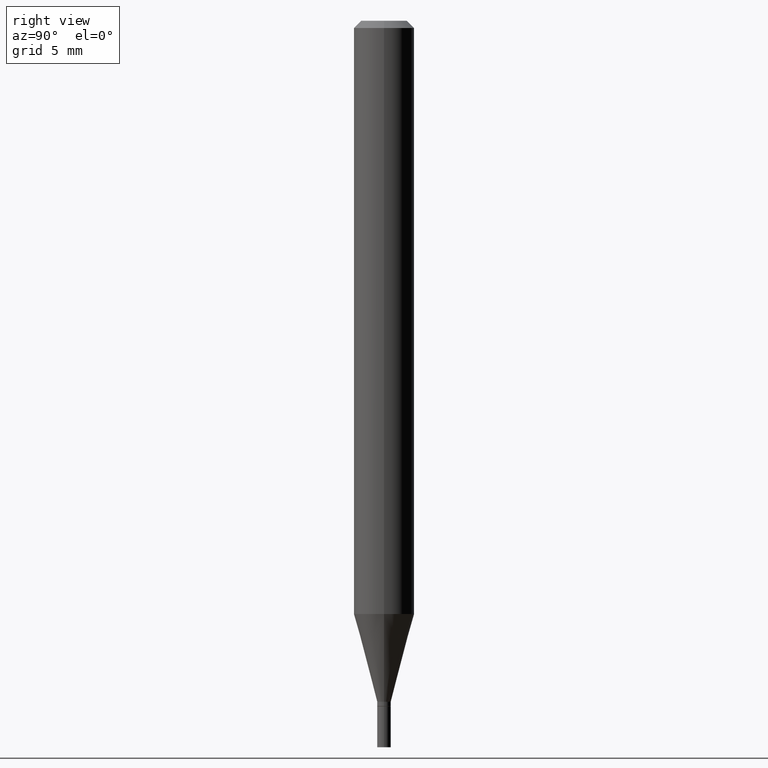
[diagram: clean part render]
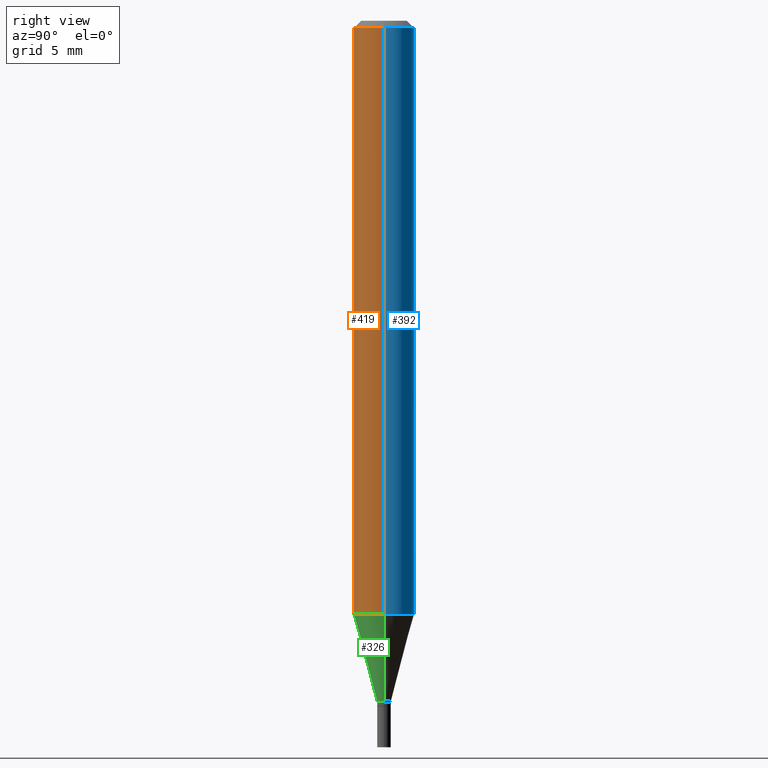
[diagram: same view with three faces highlighted in distinct colors, each labeled with its STEP entity id]
A machine part, right view with three faces highlighted in distinct colors.
Their STEP definitions:

[orange] entity #419 — the highlighted cylindrical surface (edge-blend (fillet) strip) has radius 1.5875 mm, axis along (-0, 0, 1).
#12 = ORIENTED_EDGE ( 'NONE', *, *, #447, .F. ) ;
#28 = DIRECTION ( 'NONE',  ( 1.000000000000000000, -6.982962677686266711E-15, 0.000000000000000000 ) ) ;
#38 = ORIENTED_EDGE ( 'NONE', *, *, #50, .F. ) ;
#42 = DIRECTION ( 'NONE',  ( -2.445468806185136597E-29, 3.491481338843145583E-15, 1.000000000000000000 ) ) ;
#46 = AXIS2_PLACEMENT_3D ( 'NONE', #232, #190, #123 ) ;
#50 = EDGE_CURVE ( 'NONE', #376, #214, #358, .T. ) ;
#69 = CARTESIAN_POINT ( 'NONE',  ( -0.06250000000000000000, -1.720621426954643378E-15, -0.01499999999999999944 ) ) ;
#84 = EDGE_CURVE ( 'NONE', #322, #299, #338, .T. ) ;
#87 = EDGE_CURVE ( 'NONE', #299, #214, #94, .T. ) ;
#94 = LINE ( 'NONE', #159, #125 ) ;
#123 = DIRECTION ( 'NONE',  ( 1.000000000000000000, -6.982962677686270655E-15, 0.000000000000000000 ) ) ;
#125 = VECTOR ( 'NONE', #393, 39.37007874015748143 ) ;
#147 = ORIENTED_EDGE ( 'NONE', *, *, #87, .T. ) ;
#159 = CARTESIAN_POINT ( 'NONE',  ( 0.06250000000000000000, -4.364351673553916694E-16, 3.047610484872459871E-30 ) ) ;
#171 = CARTESIAN_POINT ( 'NONE',  ( -0.06250000000000000000, -3.832959843676702294E-15, -1.224995535832909876 ) ) ;
#190 = DIRECTION ( 'NONE',  ( -2.445468806185136597E-29, 3.491481338843145583E-15, 1.000000000000000000 ) ) ;
#214 = VERTEX_POINT ( 'NONE', #284 ) ;
#225 = DIRECTION ( 'NONE',  ( -2.445468806185136877E-29, 3.491481338843145188E-15, 1.000000000000000000 ) ) ;
#232 = CARTESIAN_POINT ( 'NONE',  ( 2.995688370595427801E-29, -4.277049053526764910E-15, -1.224995535832909876 ) ) ;
#264 = CARTESIAN_POINT ( 'NONE',  ( 0.000000000000000000, 0.000000000000000000, 0.000000000000000000 ) ) ;
#284 = CARTESIAN_POINT ( 'NONE',  ( 0.06250000000000000000, -4.888073874380388472E-16, -0.01499999999999999944 ) ) ;
#294 = EDGE_LOOP ( 'NONE', ( #12, #311, #147, #38 ) ) ;
#295 = CARTESIAN_POINT ( 'NONE',  ( -0.06250000000000000000, 4.440892098500626162E-16, -3.074334431409316114E-30 ) ) ;
#299 = VERTEX_POINT ( 'NONE', #435 ) ;
#311 = ORIENTED_EDGE ( 'NONE', *, *, #84, .T. ) ;
#322 = VERTEX_POINT ( 'NONE', #171 ) ;
#338 = CIRCLE ( 'NONE', #46, 0.06250000000000000000 ) ;
#339 = AXIS2_PLACEMENT_3D ( 'NONE', #264, #372, #424 ) ;
#342 = CYLINDRICAL_SURFACE ( 'NONE', #339, 0.06250000000000000000 ) ;
#358 = CIRCLE ( 'NONE', #414, 0.06250000000000000000 ) ;
#364 = CARTESIAN_POINT ( 'NONE',  ( 3.668203209277705088E-31, -5.237222008264718399E-17, -0.01499999999999999944 ) ) ;
#372 = DIRECTION ( 'NONE',  ( -2.445468806185136597E-29, 3.491481338843145583E-15, 1.000000000000000000 ) ) ;
#376 = VERTEX_POINT ( 'NONE', #69 ) ;
#393 = DIRECTION ( 'NONE',  ( -2.445468806185136877E-29, 3.491481338843145188E-15, 1.000000000000000000 ) ) ;
#412 = LINE ( 'NONE', #295, #431 ) ;
#414 = AXIS2_PLACEMENT_3D ( 'NONE', #364, #42, #28 ) ;
#418 = FACE_OUTER_BOUND ( 'NONE', #294, .T. ) ;
#419 = ADVANCED_FACE ( 'NONE', ( #418 ), #342, .T. ) ;
#424 = DIRECTION ( 'NONE',  ( 1.000000000000000000, -6.982962677686266711E-15, 4.876176775795935793E-29 ) ) ;
#431 = VECTOR ( 'NONE', #225, 39.37007874015748143 ) ;
#435 = CARTESIAN_POINT ( 'NONE',  ( 0.06250000000000000000, -4.713484220882155791E-15, -1.224995535832909876 ) ) ;
#447 = EDGE_CURVE ( 'NONE', #322, #376, #412, .T. ) ;

[blue] entity #392 — the highlighted cylindrical surface (edge-blend (fillet) strip) has radius 1.5875 mm, axis along (-0, 0, 1).
#13 = DIRECTION ( 'NONE',  ( 1.000000000000000000, -6.982962677686266711E-15, 4.876176775795935793E-29 ) ) ;
#19 = EDGE_CURVE ( 'NONE', #299, #322, #313, .T. ) ;
#39 = ORIENTED_EDGE ( 'NONE', *, *, #87, .F. ) ;
#69 = CARTESIAN_POINT ( 'NONE',  ( -0.06250000000000000000, -1.720621426954643378E-15, -0.01499999999999999944 ) ) ;
#87 = EDGE_CURVE ( 'NONE', #299, #214, #94, .T. ) ;
#90 = CARTESIAN_POINT ( 'NONE',  ( 2.995688370595427801E-29, -4.277049053526764910E-15, -1.224995535832909876 ) ) ;
#94 = LINE ( 'NONE', #159, #125 ) ;
#105 = CARTESIAN_POINT ( 'NONE',  ( 0.000000000000000000, 0.000000000000000000, 0.000000000000000000 ) ) ;
#121 = DIRECTION ( 'NONE',  ( 1.000000000000000000, -6.982962677686270655E-15, 0.000000000000000000 ) ) ;
#125 = VECTOR ( 'NONE', #393, 39.37007874015748143 ) ;
#136 = EDGE_CURVE ( 'NONE', #214, #376, #188, .T. ) ;
#137 = FACE_OUTER_BOUND ( 'NONE', #321, .T. ) ;
#152 = ORIENTED_EDGE ( 'NONE', *, *, #447, .T. ) ;
#158 = CARTESIAN_POINT ( 'NONE',  ( 3.668203209277705088E-31, -5.237222008264718399E-17, -0.01499999999999999944 ) ) ;
#159 = CARTESIAN_POINT ( 'NONE',  ( 0.06250000000000000000, -4.364351673553916694E-16, 3.047610484872459871E-30 ) ) ;
#171 = CARTESIAN_POINT ( 'NONE',  ( -0.06250000000000000000, -3.832959843676702294E-15, -1.224995535832909876 ) ) ;
#188 = CIRCLE ( 'NONE', #236, 0.06250000000000000000 ) ;
#214 = VERTEX_POINT ( 'NONE', #284 ) ;
#225 = DIRECTION ( 'NONE',  ( -2.445468806185136877E-29, 3.491481338843145188E-15, 1.000000000000000000 ) ) ;
#236 = AXIS2_PLACEMENT_3D ( 'NONE', #158, #310, #272 ) ;
#256 = ORIENTED_EDGE ( 'NONE', *, *, #19, .T. ) ;
#272 = DIRECTION ( 'NONE',  ( 1.000000000000000000, -6.982962677686266711E-15, 0.000000000000000000 ) ) ;
#273 = AXIS2_PLACEMENT_3D ( 'NONE', #90, #458, #121 ) ;
#283 = CYLINDRICAL_SURFACE ( 'NONE', #456, 0.06250000000000000000 ) ;
#284 = CARTESIAN_POINT ( 'NONE',  ( 0.06250000000000000000, -4.888073874380388472E-16, -0.01499999999999999944 ) ) ;
#295 = CARTESIAN_POINT ( 'NONE',  ( -0.06250000000000000000, 4.440892098500626162E-16, -3.074334431409316114E-30 ) ) ;
#299 = VERTEX_POINT ( 'NONE', #435 ) ;
#310 = DIRECTION ( 'NONE',  ( -2.445468806185136597E-29, 3.491481338843145583E-15, 1.000000000000000000 ) ) ;
#313 = CIRCLE ( 'NONE', #273, 0.06250000000000000000 ) ;
#321 = EDGE_LOOP ( 'NONE', ( #256, #152, #465, #39 ) ) ;
#322 = VERTEX_POINT ( 'NONE', #171 ) ;
#332 = DIRECTION ( 'NONE',  ( -2.445468806185136597E-29, 3.491481338843145583E-15, 1.000000000000000000 ) ) ;
#376 = VERTEX_POINT ( 'NONE', #69 ) ;
#392 = ADVANCED_FACE ( 'NONE', ( #137 ), #283, .T. ) ;
#393 = DIRECTION ( 'NONE',  ( -2.445468806185136877E-29, 3.491481338843145188E-15, 1.000000000000000000 ) ) ;
#412 = LINE ( 'NONE', #295, #431 ) ;
#431 = VECTOR ( 'NONE', #225, 39.37007874015748143 ) ;
#435 = CARTESIAN_POINT ( 'NONE',  ( 0.06250000000000000000, -4.713484220882155791E-15, -1.224995535832909876 ) ) ;
#447 = EDGE_CURVE ( 'NONE', #322, #376, #412, .T. ) ;
#456 = AXIS2_PLACEMENT_3D ( 'NONE', #105, #332, #13 ) ;
#458 = DIRECTION ( 'NONE',  ( -2.445468806185136597E-29, 3.491481338843145583E-15, 1.000000000000000000 ) ) ;
#465 = ORIENTED_EDGE ( 'NONE', *, *, #136, .F. ) ;

[green] entity #326 — the highlighted conical surface has half-angle 15 deg.
#6 = FACE_OUTER_BOUND ( 'NONE', #204, .T. ) ;
#7 = AXIS2_PLACEMENT_3D ( 'NONE', #68, #444, #361 ) ;
#15 = DIRECTION ( 'NONE',  ( -0.2588190451025213501, 5.211531920934551042E-15, 0.9659258262890682012 ) ) ;
#27 = EDGE_CURVE ( 'NONE', #34, #299, #270, .T. ) ;
#34 = VERTEX_POINT ( 'NONE', #80 ) ;
#46 = AXIS2_PLACEMENT_3D ( 'NONE', #232, #190, #123 ) ;
#56 = DIRECTION ( 'NONE',  ( -2.445468806185136597E-29, 3.491481338843145583E-15, 1.000000000000000000 ) ) ;
#68 = CARTESIAN_POINT ( 'NONE',  ( 3.438329141496302499E-29, -4.909022762413463673E-15, -1.406000000000000139 ) ) ;
#76 = VERTEX_POINT ( 'NONE', #223 ) ;
#80 = CARTESIAN_POINT ( 'NONE',  ( 0.01399999999999992223, -5.006784239901070239E-15, -1.406000000000000139 ) ) ;
#81 = VECTOR ( 'NONE', #15, 39.37007874015747433 ) ;
#84 = EDGE_CURVE ( 'NONE', #322, #299, #338, .T. ) ;
#108 = ORIENTED_EDGE ( 'NONE', *, *, #211, .T. ) ;
#123 = DIRECTION ( 'NONE',  ( 1.000000000000000000, -6.982962677686270655E-15, 0.000000000000000000 ) ) ;
#138 = DIRECTION ( 'NONE',  ( 0.2588190451025213501, 1.565188264969621968E-15, 0.9659258262890682012 ) ) ;
#148 = LINE ( 'NONE', #150, #81 ) ;
#149 = ORIENTED_EDGE ( 'NONE', *, *, #84, .F. ) ;
#150 = CARTESIAN_POINT ( 'NONE',  ( -0.01399999999999992223, -4.809546779407050347E-15, -1.406000000000000139 ) ) ;
#156 = CONICAL_SURFACE ( 'NONE', #7, 0.01399999999999992223, 0.2617993877991500740 ) ;
#171 = CARTESIAN_POINT ( 'NONE',  ( -0.06250000000000000000, -3.832959843676702294E-15, -1.224995535832909876 ) ) ;
#190 = DIRECTION ( 'NONE',  ( -2.445468806185136597E-29, 3.491481338843145583E-15, 1.000000000000000000 ) ) ;
#204 = EDGE_LOOP ( 'NONE', ( #362, #108, #327, #149 ) ) ;
#211 = EDGE_CURVE ( 'NONE', #76, #34, #230, .T. ) ;
#223 = CARTESIAN_POINT ( 'NONE',  ( -0.01399999999999992223, -4.321253311541875926E-15, -1.406000000000000139 ) ) ;
#228 = DIRECTION ( 'NONE',  ( 1.000000000000000000, -6.982962677686232790E-15, 0.000000000000000000 ) ) ;
#230 = CIRCLE ( 'NONE', #260, 0.01399999999999992223 ) ;
#232 = CARTESIAN_POINT ( 'NONE',  ( 2.995688370595427801E-29, -4.277049053526764910E-15, -1.224995535832909876 ) ) ;
#260 = AXIS2_PLACEMENT_3D ( 'NONE', #422, #56, #228 ) ;
#270 = LINE ( 'NONE', #387, #349 ) ;
#299 = VERTEX_POINT ( 'NONE', #435 ) ;
#322 = VERTEX_POINT ( 'NONE', #171 ) ;
#326 = ADVANCED_FACE ( 'NONE', ( #6 ), #156, .T. ) ;
#327 = ORIENTED_EDGE ( 'NONE', *, *, #27, .T. ) ;
#338 = CIRCLE ( 'NONE', #46, 0.06250000000000000000 ) ;
#349 = VECTOR ( 'NONE', #138, 39.37007874015747433 ) ;
#361 = DIRECTION ( 'NONE',  ( 1.000000000000000000, -6.982962677686232790E-15, 0.000000000000000000 ) ) ;
#362 = ORIENTED_EDGE ( 'NONE', *, *, #407, .F. ) ;
#387 = CARTESIAN_POINT ( 'NONE',  ( 0.01399999999999992223, -5.006784239901070239E-15, -1.406000000000000139 ) ) ;
#407 = EDGE_CURVE ( 'NONE', #76, #322, #148, .T. ) ;
#422 = CARTESIAN_POINT ( 'NONE',  ( 3.438329141496302499E-29, -4.909022762413463673E-15, -1.406000000000000139 ) ) ;
#435 = CARTESIAN_POINT ( 'NONE',  ( 0.06250000000000000000, -4.713484220882155791E-15, -1.224995535832909876 ) ) ;
#444 = DIRECTION ( 'NONE',  ( -2.445468806185136597E-29, 3.491481338843145583E-15, 1.000000000000000000 ) ) ;